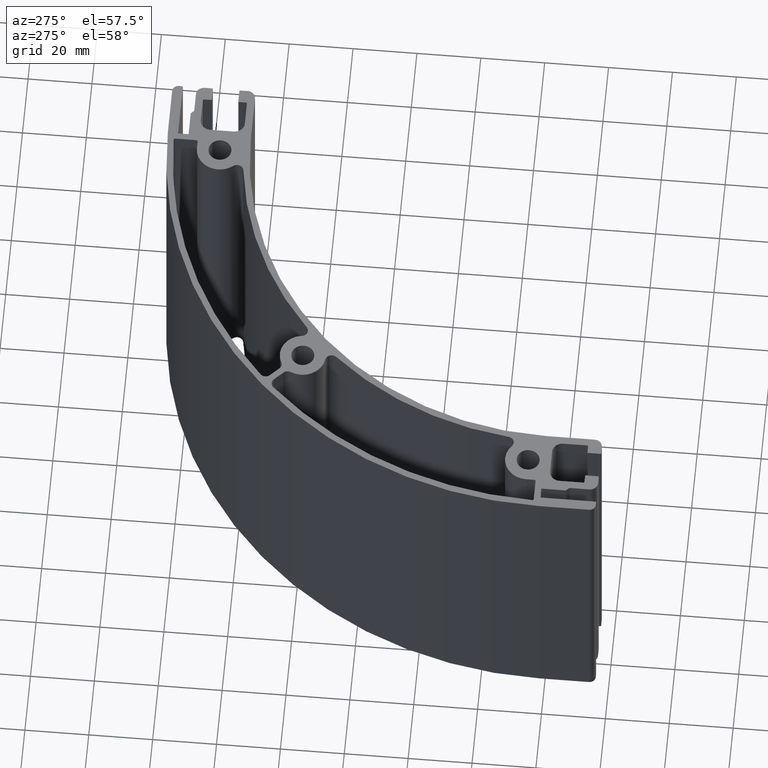
[diagram: clean part render]
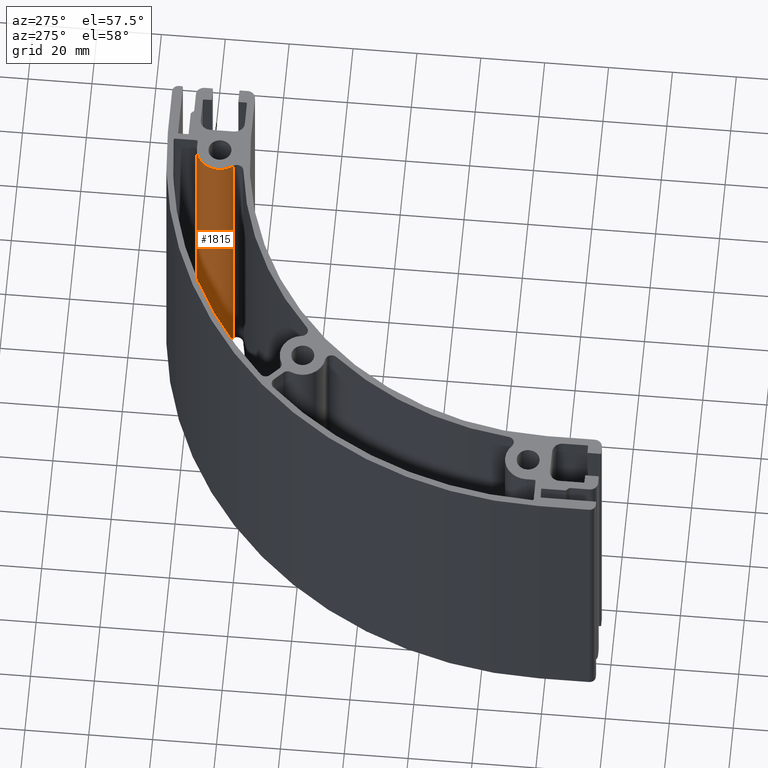
[diagram: same view with one face highlighted and labeled with its STEP entity id]
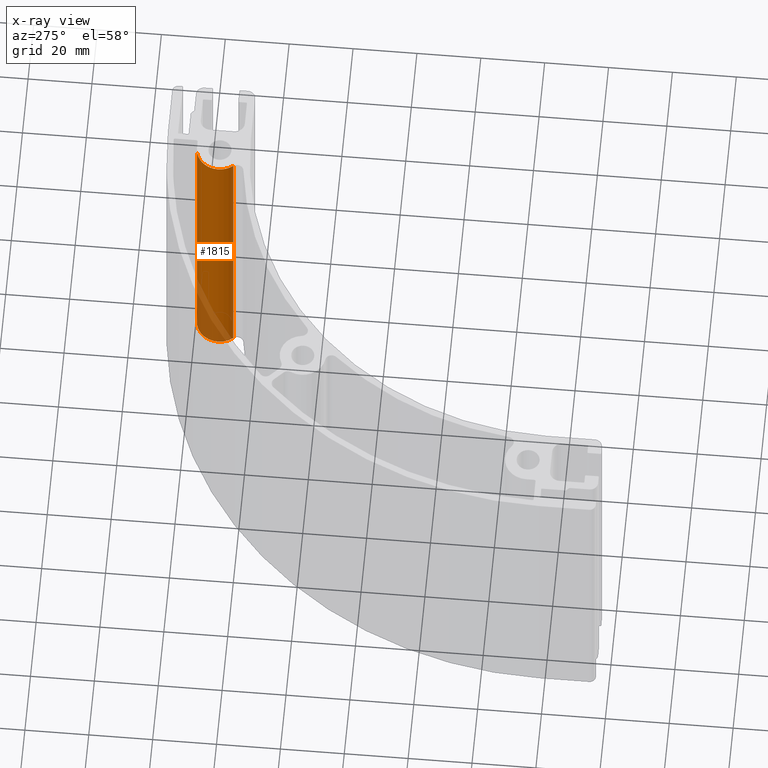
[diagram: x-ray of the same camera — body ghosted, the highlighted face saturated]
A machine part, auxiliary view. The second image highlights one B-rep face of the part: STEP entity #1815.
The next image is the same camera in x-ray: the body ghosted, the highlighted face saturated — about 15% of this face is hidden behind the body in this view.
In plain terms, the highlighted cylindrical surface (edge-blend (fillet) strip) has radius 7.2 mm, axis along (0, 0, 1).
Its self-contained STEP definition (entity closure, byte-faithful):
#87=FACE_OUTER_BOUND('',#182,.T.);
#182=EDGE_LOOP('',(#1264,#1265,#1266,#1267));
#298=LINE('',#2810,#471);
#300=LINE('',#2816,#473);
#471=VECTOR('',#2240,10.);
#473=VECTOR('',#2246,10.);
#641=CIRCLE('',#1959,7.2);
#642=CIRCLE('',#1960,7.2);
#759=VERTEX_POINT('',#2807);
#760=VERTEX_POINT('',#2809);
#761=VERTEX_POINT('',#2813);
#762=VERTEX_POINT('',#2815);
#964=EDGE_CURVE('',#759,#760,#298,.T.);
#966=EDGE_CURVE('',#761,#759,#641,.T.);
#967=EDGE_CURVE('',#761,#762,#300,.T.);
#968=EDGE_CURVE('',#760,#762,#642,.T.);
#1264=ORIENTED_EDGE('',*,*,#966,.F.);
#1265=ORIENTED_EDGE('',*,*,#967,.T.);
#1266=ORIENTED_EDGE('',*,*,#968,.F.);
#1267=ORIENTED_EDGE('',*,*,#964,.F.);
#1756=CYLINDRICAL_SURFACE('',#1958,7.2);
#1815=ADVANCED_FACE('',(#87),#1756,.T.);
#1958=AXIS2_PLACEMENT_3D('',#2812,#2242,#2243);
#1959=AXIS2_PLACEMENT_3D('',#2814,#2244,#2245);
#1960=AXIS2_PLACEMENT_3D('',#2817,#2247,#2248);
#2240=DIRECTION('',(0.,0.,1.));
#2242=DIRECTION('center_axis',(0.,0.,1.));
#2243=DIRECTION('ref_axis',(0.,-1.,0.));
#2244=DIRECTION('center_axis',(0.,0.,-1.));
#2245=DIRECTION('ref_axis',(0.,-1.,0.));
#2246=DIRECTION('',(0.,0.,1.));
#2247=DIRECTION('center_axis',(0.,0.,1.));
#2248=DIRECTION('ref_axis',(0.,-1.,0.));
#2807=CARTESIAN_POINT('',(73.3918442824252,39.5581557175748,0.));
#2809=CARTESIAN_POINT('',(73.3918442824252,39.5581557175748,100.));
#2810=CARTESIAN_POINT('',(73.3918442824252,39.5581557175748,0.));
#2812=CARTESIAN_POINT('Origin',(73.3918442824252,32.3581557175748,0.));
#2813=CARTESIAN_POINT('',(67.8922484604475,27.7111732778742,0.));
#2814=CARTESIAN_POINT('Origin',(73.3918442824252,32.3581557175748,0.));
#2815=CARTESIAN_POINT('',(67.8922484604475,27.7111732778742,100.));
#2816=CARTESIAN_POINT('',(67.8922484604475,27.7111732778742,0.));
#2817=CARTESIAN_POINT('Origin',(73.3918442824252,32.3581557175748,100.));